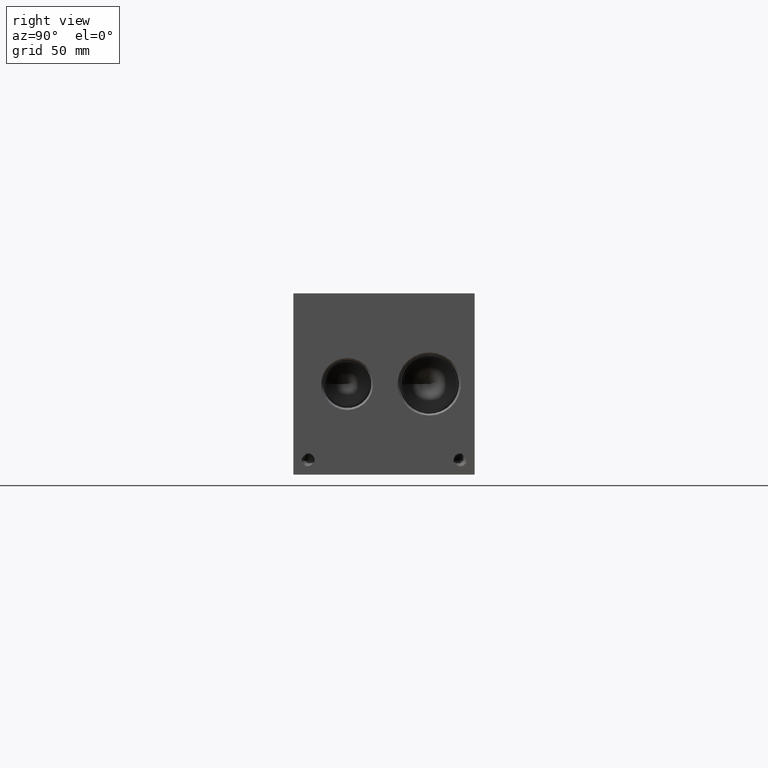
[diagram: clean part render]
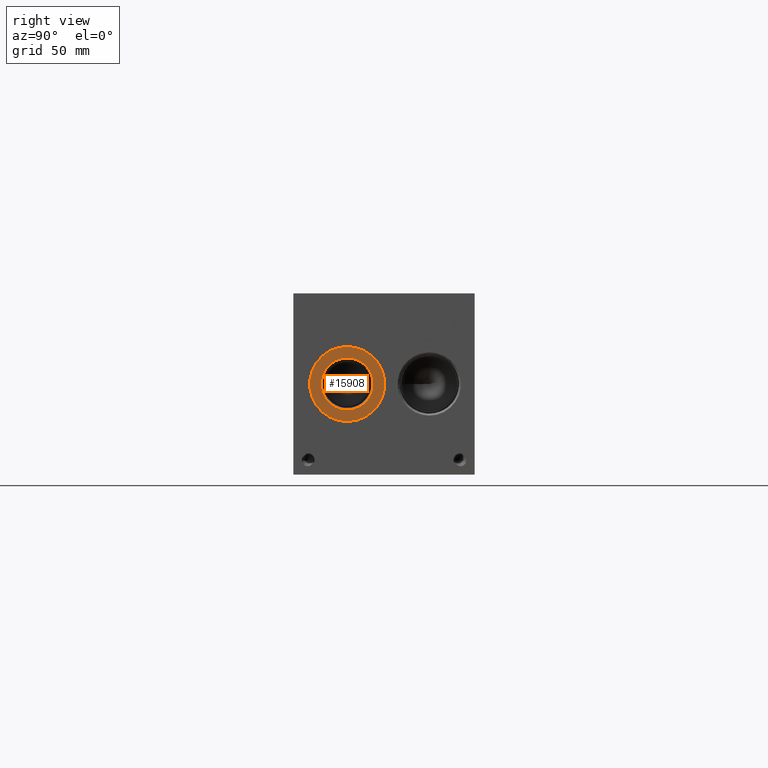
[diagram: same view with one face highlighted and labeled with its STEP entity id]
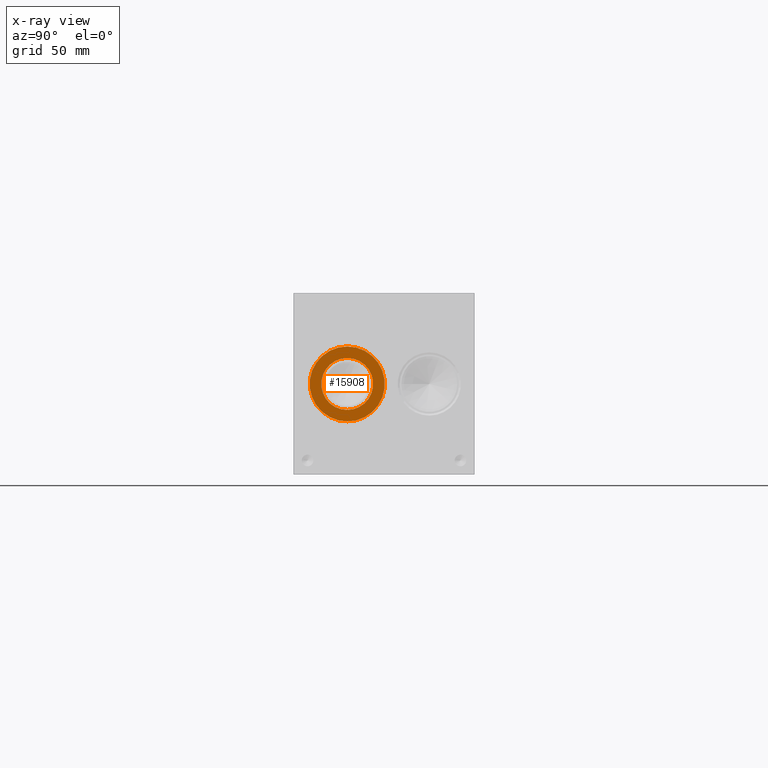
[diagram: x-ray of the same camera — body ghosted, the highlighted face saturated]
A machine part, right view. The second image highlights one B-rep face of the part: STEP entity #15908.
The next image is the same camera in x-ray: the body ghosted, the highlighted face saturated — about 0% of this face is hidden behind the body in this view.
In plain terms, the highlighted planar face has unit normal (-1, 0, 0).
Its self-contained STEP definition (entity closure, byte-faithful):
#539=CIRCLE('',#16728,21.0185);
#540=CIRCLE('',#16729,21.0185);
#541=CIRCLE('',#16731,14.5923);
#542=CIRCLE('',#16732,14.5923);
#1296=FACE_BOUND('',#2926,.T.);
#2002=FACE_OUTER_BOUND('',#2925,.T.);
#2925=EDGE_LOOP('',(#13242,#13243));
#2926=EDGE_LOOP('',(#13244,#13245));
#7210=VERTEX_POINT('',#26703);
#7211=VERTEX_POINT('',#26705);
#7212=VERTEX_POINT('',#26709);
#7213=VERTEX_POINT('',#26710);
#9323=EDGE_CURVE('',#7210,#7211,#539,.T.);
#9324=EDGE_CURVE('',#7211,#7210,#540,.T.);
#9325=EDGE_CURVE('',#7212,#7213,#541,.T.);
#9326=EDGE_CURVE('',#7213,#7212,#542,.T.);
#13242=ORIENTED_EDGE('',*,*,#9324,.F.);
#13243=ORIENTED_EDGE('',*,*,#9323,.F.);
#13244=ORIENTED_EDGE('',*,*,#9325,.T.);
#13245=ORIENTED_EDGE('',*,*,#9326,.T.);
#14688=PLANE('',#16730);
#15908=ADVANCED_FACE('',(#2002,#1296),#14688,.F.);
#16728=AXIS2_PLACEMENT_3D('',#26706,#19734,#19735);
#16729=AXIS2_PLACEMENT_3D('',#26707,#19736,#19737);
#16730=AXIS2_PLACEMENT_3D('',#26708,#19738,#19739);
#16731=AXIS2_PLACEMENT_3D('',#26711,#19740,#19741);
#16732=AXIS2_PLACEMENT_3D('',#26712,#19742,#19743);
#19734=DIRECTION('center_axis',(-1.,0.,0.));
#19735=DIRECTION('ref_axis',(0.,0.,1.));
#19736=DIRECTION('center_axis',(-1.,0.,0.));
#19737=DIRECTION('ref_axis',(0.,0.,1.));
#19738=DIRECTION('center_axis',(-1.,0.,0.));
#19739=DIRECTION('ref_axis',(0.,0.,1.));
#19740=DIRECTION('center_axis',(-1.,0.,0.));
#19741=DIRECTION('ref_axis',(0.,0.,1.));
#19742=DIRECTION('center_axis',(-1.,0.,0.));
#19743=DIRECTION('ref_axis',(0.,0.,1.));
#26703=CARTESIAN_POINT('',(383.3876,30.1752,71.8185));
#26705=CARTESIAN_POINT('',(383.3876,30.1752,29.7815));
#26706=CARTESIAN_POINT('Origin',(383.3876,30.1752,50.8));
#26707=CARTESIAN_POINT('Origin',(383.3876,30.1752,50.8));
#26708=CARTESIAN_POINT('Origin',(383.3876,30.1752,36.2077));
#26709=CARTESIAN_POINT('',(383.3876,30.1752,36.2077));
#26710=CARTESIAN_POINT('',(383.3876,30.1752,65.3923));
#26711=CARTESIAN_POINT('Origin',(383.3876,30.1752,50.8));
#26712=CARTESIAN_POINT('Origin',(383.3876,30.1752,50.8));